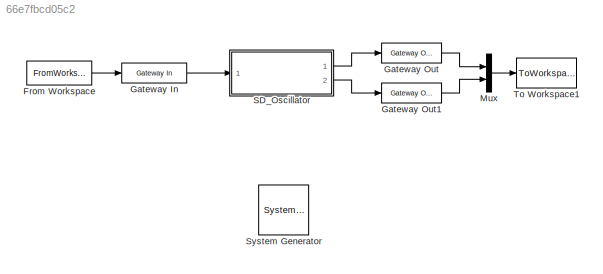
MODEL slx_66e7fbcd05c2
KIND model
CONFIG AbsTol = auto
CONFIG FixedStep = auto
CONFIG MaxStep = auto
CONFIG MinStep = auto
CONFIG RelTol = 1e-3
CONFIG SampleTimeConstraint = Unconstrained
CONFIG Solver = VariableStepAuto
CONFIG SolverMode = SingleTasking
CONFIG SolverName = VariableStepAuto
CONFIG StartTime = 0.0
CONFIG StopTime = t_stop
BLOCK [Reference]  System Generator  REF=xbsIndex_r4/ System Generator
  AttributesFormatString = System\nGenerator
  Ports = []
  SourceBlock = xbsIndex_r4/ System Generator
  SourceType = Xilinx System Generator Block
  Tag = genX
  UserDataPersistent = on
BLOCK [FromWorkspace] From Workspace
  SampleTime = ts
  VariableName = [t',w']
  ZeroCross = on
BLOCK [Reference] Gateway In  REF=xbsIndex_r4/Gateway In
  Ports = [1, 1]
  SourceBlock = xbsIndex_r4/Gateway In
  SourceType = Xilinx Gateway In Block
BLOCK [Reference] Gateway Out  REF=xbsIndex_r4/Gateway Out
  Ports = [1, 1]
  SourceBlock = xbsIndex_r4/Gateway Out
  SourceType = Xilinx Gateway Out Block
BLOCK [Reference] Gateway Out1  REF=xbsIndex_r4/Gateway Out
  Ports = [1, 1]
  SourceBlock = xbsIndex_r4/Gateway Out
  SourceType = Xilinx Gateway Out Block
BLOCK [Mux] Mux
  DisplayOption = bar
  Inputs = 2
  Ports = [2, 1]
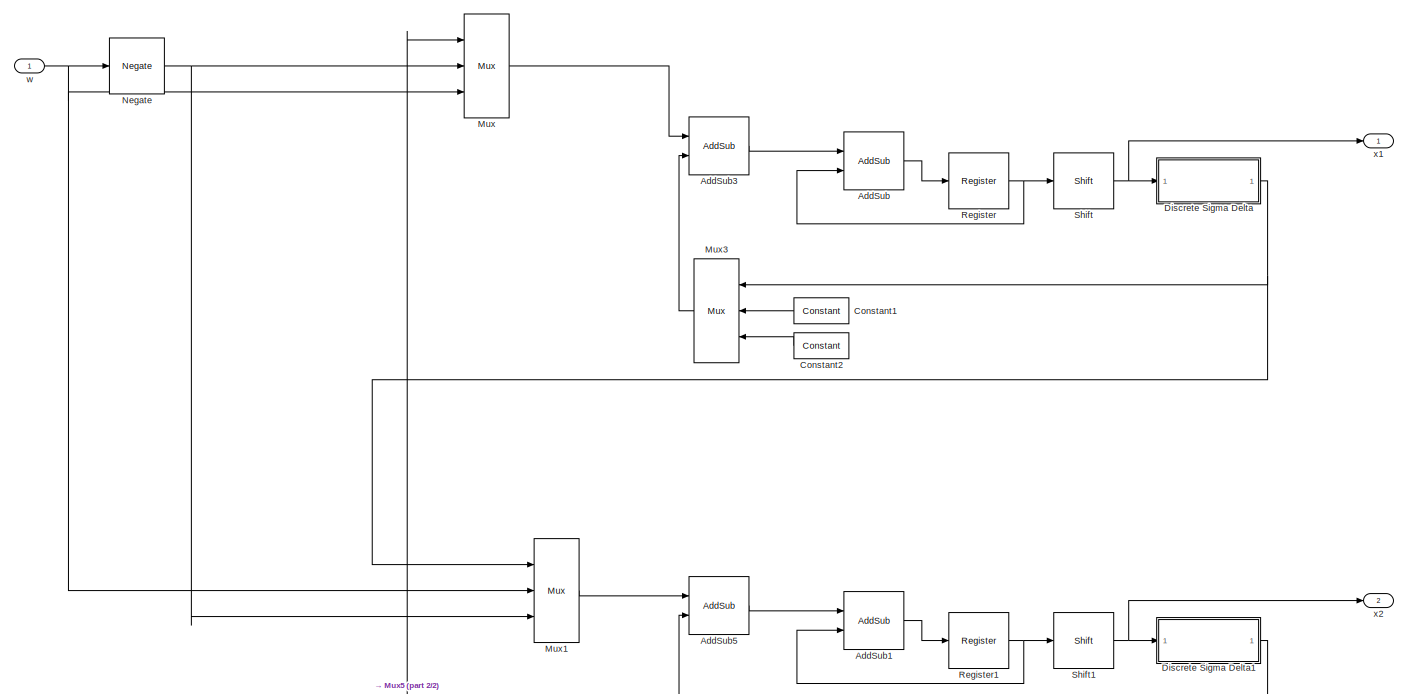
[diagram: SD_Oscillator - part 1/2, most of the canvas]
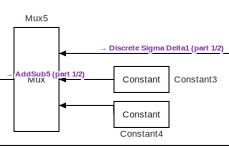
[diagram: SD_Oscillator - part 2/2, bottom center region]
BLOCK [SubSystem] SD_Oscillator
  Ports = [1, 2]
  RequestExecContextInheritance = off
  Variant = off
BLOCK [Reference] SD_Oscillator/AddSub  REF=xbsIndex_r4/AddSub
  Ports = [2, 1]
  SourceBlock = xbsIndex_r4/AddSub
  SourceType = Xilinx Adder/Subtracter Block
BLOCK [Reference] SD_Oscillator/AddSub1  REF=xbsIndex_r4/AddSub
  Ports = [2, 1]
  SourceBlock = xbsIndex_r4/AddSub
  SourceType = Xilinx Adder/Subtracter Block
BLOCK [Reference] SD_Oscillator/AddSub3  REF=xbsIndex_r4/AddSub
  Ports = [2, 1]
  SourceBlock = xbsIndex_r4/AddSub
  SourceType = Xilinx Adder/Subtracter Block
BLOCK [Reference] SD_Oscillator/AddSub5  REF=xbsIndex_r4/AddSub
  Ports = [2, 1]
  SourceBlock = xbsIndex_r4/AddSub
  SourceType = Xilinx Adder/Subtracter Block
BLOCK [Reference] SD_Oscillator/Constant1  REF=xbsIndex_r4/Constant
  Ports = [0, 1]
  SourceBlock = xbsIndex_r4/Constant
  SourceType = Xilinx Constant Block Block
BLOCK [Reference] SD_Oscillator/Constant2  REF=xbsIndex_r4/Constant
  Ports = [0, 1]
  SourceBlock = xbsIndex_r4/Constant
  SourceType = Xilinx Constant Block Block
BLOCK [Reference] SD_Oscillator/Constant3  REF=xbsIndex_r4/Constant
  Ports = [0, 1]
  SourceBlock = xbsIndex_r4/Constant
  SourceType = Xilinx Constant Block Block
BLOCK [Reference] SD_Oscillator/Constant4  REF=xbsIndex_r4/Constant
  Ports = [0, 1]
  SourceBlock = xbsIndex_r4/Constant
  SourceType = Xilinx Constant Block Block
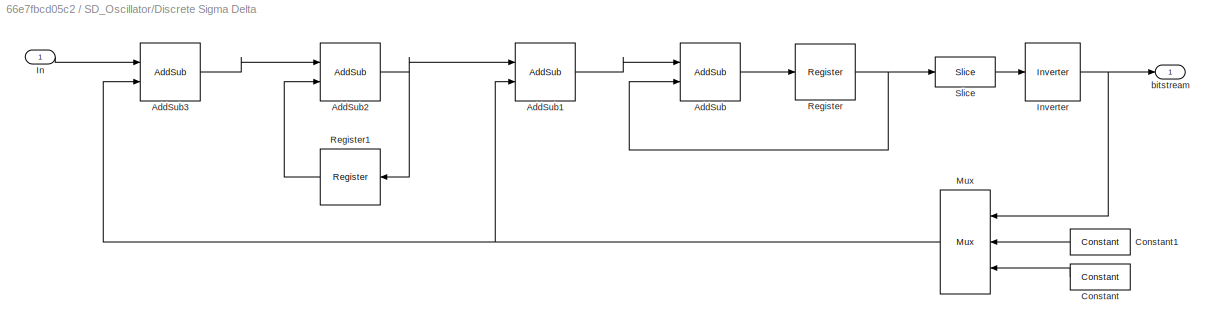
BLOCK [SubSystem] SD_Oscillator/Discrete Sigma Delta
  Ports = [1, 1]
  RequestExecContextInheritance = off
  Variant = off
BLOCK [Reference] SD_Oscillator/Discrete Sigma Delta/AddSub  REF=xbsIndex_r4/AddSub
  Ports = [2, 1]
  SourceBlock = xbsIndex_r4/AddSub
  SourceType = Xilinx Adder/Subtracter Block
BLOCK [Reference] SD_Oscillator/Discrete Sigma Delta/AddSub1  REF=xbsIndex_r4/AddSub
  Ports = [2, 1]
  SourceBlock = xbsIndex_r4/AddSub
  SourceType = Xilinx Adder/Subtracter Block
BLOCK [Reference] SD_Oscillator/Discrete Sigma Delta/AddSub2  REF=xbsIndex_r4/AddSub
  Ports = [2, 1]
  SourceBlock = xbsIndex_r4/AddSub
  SourceType = Xilinx Adder/Subtracter Block
BLOCK [Reference] SD_Oscillator/Discrete Sigma Delta/AddSub3  REF=xbsIndex_r4/AddSub
  Ports = [2, 1]
  SourceBlock = xbsIndex_r4/AddSub
  SourceType = Xilinx Adder/Subtracter Block
BLOCK [Reference] SD_Oscillator/Discrete Sigma Delta/Constant  REF=xbsIndex_r4/Constant
  Ports = [0, 1]
  SourceBlock = xbsIndex_r4/Constant
  SourceType = Xilinx Constant Block Block
BLOCK [Reference] SD_Oscillator/Discrete Sigma Delta/Constant1  REF=xbsIndex_r4/Constant
  Ports = [0, 1]
  SourceBlock = xbsIndex_r4/Constant
  SourceType = Xilinx Constant Block Block
BLOCK [Inport] SD_Oscillator/Discrete Sigma Delta/In
  IconDisplay = Port number
BLOCK [Reference] SD_Oscillator/Discrete Sigma Delta/Inverter  REF=xbsIndex_r4/Inverter
  Ports = [1, 1]
  SourceBlock = xbsIndex_r4/Inverter
  SourceType = Xilinx Inverter Block
BLOCK [Reference] SD_Oscillator/Discrete Sigma Delta/Mux  REF=xbsIndex_r4/Mux
  Ports = [3, 1]
  SourceBlock = xbsIndex_r4/Mux
  SourceType = Xilinx Bus Multiplexer Block
BLOCK [Reference] SD_Oscillator/Discrete Sigma Delta/Register  REF=xbsIndex_r4/Register
  Ports = [1, 1]
  SourceBlock = xbsIndex_r4/Register
  SourceType = Xilinx Register Block
BLOCK [Reference] SD_Oscillator/Discrete Sigma Delta/Register1  REF=xbsIndex_r4/Register
  Ports = [1, 1]
  SourceBlock = xbsIndex_r4/Register
  SourceType = Xilinx Register Block
BLOCK [Reference] SD_Oscillator/Discrete Sigma Delta/Slice  REF=xbsIndex_r4/Slice
  Ports = [1, 1]
  SourceBlock = xbsIndex_r4/Slice
  SourceType = Xilinx Bit Slice Extractor Block
BLOCK [Outport] SD_Oscillator/Discrete Sigma Delta/bitstream
  IconDisplay = Port number
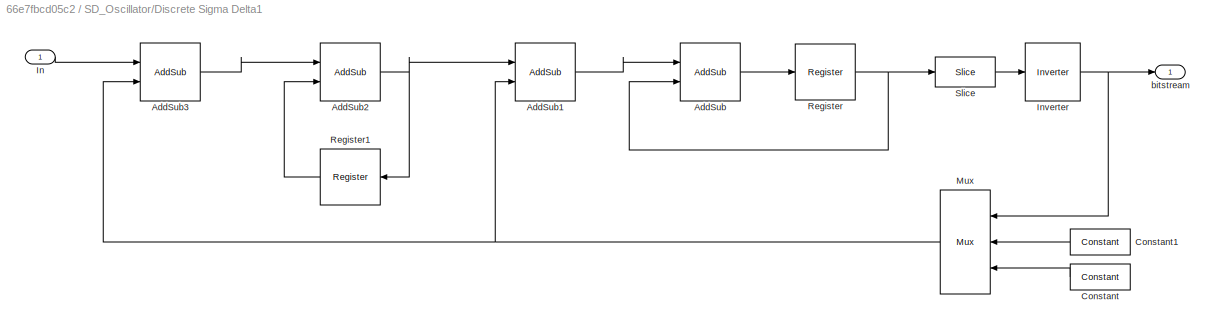
BLOCK [SubSystem] SD_Oscillator/Discrete Sigma Delta1
  Ports = [1, 1]
  RequestExecContextInheritance = off
  Variant = off
BLOCK [Reference] SD_Oscillator/Discrete Sigma Delta1/AddSub  REF=xbsIndex_r4/AddSub
  Ports = [2, 1]
  SourceBlock = xbsIndex_r4/AddSub
  SourceType = Xilinx Adder/Subtracter Block
BLOCK [Reference] SD_Oscillator/Discrete Sigma Delta1/AddSub1  REF=xbsIndex_r4/AddSub
  Ports = [2, 1]
  SourceBlock = xbsIndex_r4/AddSub
  SourceType = Xilinx Adder/Subtracter Block
BLOCK [Reference] SD_Oscillator/Discrete Sigma Delta1/AddSub2  REF=xbsIndex_r4/AddSub
  Ports = [2, 1]
  SourceBlock = xbsIndex_r4/AddSub
  SourceType = Xilinx Adder/Subtracter Block
BLOCK [Reference] SD_Oscillator/Discrete Sigma Delta1/AddSub3  REF=xbsIndex_r4/AddSub
  Ports = [2, 1]
  SourceBlock = xbsIndex_r4/AddSub
  SourceType = Xilinx Adder/Subtracter Block
BLOCK [Reference] SD_Oscillator/Discrete Sigma Delta1/Constant  REF=xbsIndex_r4/Constant
  Ports = [0, 1]
  SourceBlock = xbsIndex_r4/Constant
  SourceType = Xilinx Constant Block Block
BLOCK [Reference] SD_Oscillator/Discrete Sigma Delta1/Constant1  REF=xbsIndex_r4/Constant
  Ports = [0, 1]
  SourceBlock = xbsIndex_r4/Constant
  SourceType = Xilinx Constant Block Block
BLOCK [Inport] SD_Oscillator/Discrete Sigma Delta1/In
  IconDisplay = Port number
BLOCK [Reference] SD_Oscillator/Discrete Sigma Delta1/Inverter  REF=xbsIndex_r4/Inverter
  Ports = [1, 1]
  SourceBlock = xbsIndex_r4/Inverter
  SourceType = Xilinx Inverter Block
BLOCK [Reference] SD_Oscillator/Discrete Sigma Delta1/Mux  REF=xbsIndex_r4/Mux
  Ports = [3, 1]
  SourceBlock = xbsIndex_r4/Mux
  SourceType = Xilinx Bus Multiplexer Block
BLOCK [Reference] SD_Oscillator/Discrete Sigma Delta1/Register  REF=xbsIndex_r4/Register
  Ports = [1, 1]
  SourceBlock = xbsIndex_r4/Register
  SourceType = Xilinx Register Block
BLOCK [Reference] SD_Oscillator/Discrete Sigma Delta1/Register1  REF=xbsIndex_r4/Register
  Ports = [1, 1]
  SourceBlock = xbsIndex_r4/Register
  SourceType = Xilinx Register Block
BLOCK [Reference] SD_Oscillator/Discrete Sigma Delta1/Slice  REF=xbsIndex_r4/Slice
  Ports = [1, 1]
  SourceBlock = xbsIndex_r4/Slice
  SourceType = Xilinx Bit Slice Extractor Block
BLOCK [Outport] SD_Oscillator/Discrete Sigma Delta1/bitstream
  IconDisplay = Port number
BLOCK [Reference] SD_Oscillator/Mux  REF=xbsIndex_r4/Mux
  Ports = [3, 1]
  SourceBlock = xbsIndex_r4/Mux
  SourceType = Xilinx Bus Multiplexer Block
BLOCK [Reference] SD_Oscillator/Mux1  REF=xbsIndex_r4/Mux
  Ports = [3, 1]
  SourceBlock = xbsIndex_r4/Mux
  SourceType = Xilinx Bus Multiplexer Block
BLOCK [Reference] SD_Oscillator/Mux3  REF=xbsIndex_r4/Mux
  Ports = [3, 1]
  SourceBlock = xbsIndex_r4/Mux
  SourceType = Xilinx Bus Multiplexer Block
BLOCK [Reference] SD_Oscillator/Mux5  REF=xbsIndex_r4/Mux
  Ports = [3, 1]
  SourceBlock = xbsIndex_r4/Mux
  SourceType = Xilinx Bus Multiplexer Block
BLOCK [Reference] SD_Oscillator/Negate  REF=xbsIndex_r4/Negate
  Ports = [1, 1]
  SourceBlock = xbsIndex_r4/Negate
  SourceType = Xilinx Negate Block Block
BLOCK [Reference] SD_Oscillator/Register  REF=xbsIndex_r4/Register
  Ports = [1, 1]
  SourceBlock = xbsIndex_r4/Register
  SourceType = Xilinx Register Block
BLOCK [Reference] SD_Oscillator/Register1  REF=xbsIndex_r4/Register
  Ports = [1, 1]
  SourceBlock = xbsIndex_r4/Register
  SourceType = Xilinx Register Block
BLOCK [Reference] SD_Oscillator/Shift  REF=xbsIndex_r4/Shift
  Ports = [1, 1]
  SourceBlock = xbsIndex_r4/Shift
  SourceType = Xilinx Binary Shift Operator Block
BLOCK [Reference] SD_Oscillator/Shift1  REF=xbsIndex_r4/Shift
  Ports = [1, 1]
  SourceBlock = xbsIndex_r4/Shift
  SourceType = Xilinx Binary Shift Operator Block
BLOCK [Inport] SD_Oscillator/w
  IconDisplay = Port number
BLOCK [Outport] SD_Oscillator/x1
  IconDisplay = Port number
BLOCK [Outport] SD_Oscillator/x2
  IconDisplay = Port number
  Port = 2
BLOCK [ToWorkspace] To Workspace1
  FixptAsFi = on
  MaxDataPoints = inf
  Ports = [1]
  SampleTime = -1
  Save2DSignal = 2-D array (concatenate along first dimension)
  VariableName = osc
LINE From Workspace:1 -> Gateway In:1
LINE Gateway In:1 -> SD_Oscillator:1
LINE Gateway Out1:1 -> Mux:2
LINE Gateway Out:1 -> Mux:1
LINE Mux:1 -> To Workspace1:1
LINE SD_Oscillator/AddSub1:1 -> SD_Oscillator/Register1:1
LINE SD_Oscillator/AddSub3:1 -> SD_Oscillator/AddSub:1
LINE SD_Oscillator/AddSub5:1 -> SD_Oscillator/AddSub1:1
LINE SD_Oscillator/AddSub:1 -> SD_Oscillator/Register:1
LINE SD_Oscillator/Constant1:1 -> SD_Oscillator/Mux3:2
LINE SD_Oscillator/Constant2:1 -> SD_Oscillator/Mux3:3
LINE SD_Oscillator/Constant3:1 -> SD_Oscillator/Mux5:2
LINE SD_Oscillator/Constant4:1 -> SD_Oscillator/Mux5:3
LINE SD_Oscillator/Discrete Sigma Delta/AddSub1:1 -> SD_Oscillator/Discrete Sigma Delta/AddSub:1
NET SD_Oscillator/Discrete Sigma Delta/AddSub2:1 -> SD_Oscillator/Discrete Sigma Delta/AddSub1:1, SD_Oscillator/Discrete Sigma Delta/Register1:1
LINE SD_Oscillator/Discrete Sigma Delta/AddSub3:1 -> SD_Oscillator/Discrete Sigma Delta/AddSub2:1
LINE SD_Oscillator/Discrete Sigma Delta/AddSub:1 -> SD_Oscillator/Discrete Sigma Delta/Register:1
LINE SD_Oscillator/Discrete Sigma Delta/Constant1:1 -> SD_Oscillator/Discrete Sigma Delta/Mux:2
LINE SD_Oscillator/Discrete Sigma Delta/Constant:1 -> SD_Oscillator/Discrete Sigma Delta/Mux:3
LINE SD_Oscillator/Discrete Sigma Delta/In:1 -> SD_Oscillator/Discrete Sigma Delta/AddSub3:1
NET SD_Oscillator/Discrete Sigma Delta/Inverter:1 -> SD_Oscillator/Discrete Sigma Delta/Mux:1, SD_Oscillator/Discrete Sigma Delta/bitstream:1
NET SD_Oscillator/Discrete Sigma Delta/Mux:1 -> SD_Oscillator/Discrete Sigma Delta/AddSub1:2, SD_Oscillator/Discrete Sigma Delta/AddSub3:2
LINE SD_Oscillator/Discrete Sigma Delta/Register1:1 -> SD_Oscillator/Discrete Sigma Delta/AddSub2:2
NET SD_Oscillator/Discrete Sigma Delta/Register:1 -> SD_Oscillator/Discrete Sigma Delta/AddSub:2, SD_Oscillator/Discrete Sigma Delta/Slice:1
LINE SD_Oscillator/Discrete Sigma Delta/Slice:1 -> SD_Oscillator/Discrete Sigma Delta/Inverter:1
LINE SD_Oscillator/Discrete Sigma Delta1/AddSub1:1 -> SD_Oscillator/Discrete Sigma Delta1/AddSub:1
NET SD_Oscillator/Discrete Sigma Delta1/AddSub2:1 -> SD_Oscillator/Discrete Sigma Delta1/AddSub1:1, SD_Oscillator/Discrete Sigma Delta1/Register1:1
LINE SD_Oscillator/Discrete Sigma Delta1/AddSub3:1 -> SD_Oscillator/Discrete Sigma Delta1/AddSub2:1
LINE SD_Oscillator/Discrete Sigma Delta1/AddSub:1 -> SD_Oscillator/Discrete Sigma Delta1/Register:1
LINE SD_Oscillator/Discrete Sigma Delta1/Constant1:1 -> SD_Oscillator/Discrete Sigma Delta1/Mux:2
LINE SD_Oscillator/Discrete Sigma Delta1/Constant:1 -> SD_Oscillator/Discrete Sigma Delta1/Mux:3
LINE SD_Oscillator/Discrete Sigma Delta1/In:1 -> SD_Oscillator/Discrete Sigma Delta1/AddSub3:1
NET SD_Oscillator/Discrete Sigma Delta1/Inverter:1 -> SD_Oscillator/Discrete Sigma Delta1/Mux:1, SD_Oscillator/Discrete Sigma Delta1/bitstream:1
NET SD_Oscillator/Discrete Sigma Delta1/Mux:1 -> SD_Oscillator/Discrete Sigma Delta1/AddSub1:2, SD_Oscillator/Discrete Sigma Delta1/AddSub3:2
LINE SD_Oscillator/Discrete Sigma Delta1/Register1:1 -> SD_Oscillator/Discrete Sigma Delta1/AddSub2:2
NET SD_Oscillator/Discrete Sigma Delta1/Register:1 -> SD_Oscillator/Discrete Sigma Delta1/AddSub:2, SD_Oscillator/Discrete Sigma Delta1/Slice:1
LINE SD_Oscillator/Discrete Sigma Delta1/Slice:1 -> SD_Oscillator/Discrete Sigma Delta1/Inverter:1
NET SD_Oscillator/Discrete Sigma Delta1:1 -> SD_Oscillator/Mux5:1, SD_Oscillator/Mux:1
NET SD_Oscillator/Discrete Sigma Delta:1 -> SD_Oscillator/Mux1:1, SD_Oscillator/Mux3:1
LINE SD_Oscillator/Mux1:1 -> SD_Oscillator/AddSub5:1
LINE SD_Oscillator/Mux3:1 -> SD_Oscillator/AddSub3:2
LINE SD_Oscillator/Mux5:1 -> SD_Oscillator/AddSub5:2
LINE SD_Oscillator/Mux:1 -> SD_Oscillator/AddSub3:1
NET SD_Oscillator/Negate:1 -> SD_Oscillator/Mux1:3, SD_Oscillator/Mux:2
NET SD_Oscillator/Register1:1 -> SD_Oscillator/AddSub1:2, SD_Oscillator/Shift1:1
NET SD_Oscillator/Register:1 -> SD_Oscillator/AddSub:2, SD_Oscillator/Shift:1
NET SD_Oscillator/Shift1:1 -> SD_Oscillator/Discrete Sigma Delta1:1, SD_Oscillator/x2:1
NET SD_Oscillator/Shift:1 -> SD_Oscillator/Discrete Sigma Delta:1, SD_Oscillator/x1:1
NET SD_Oscillator/w:1 -> SD_Oscillator/Mux1:2, SD_Oscillator/Mux:3, SD_Oscillator/Negate:1
LINE SD_Oscillator:1 -> Gateway Out:1
LINE SD_Oscillator:2 -> Gateway Out1:1
note: NET lines group one-source signal fan-out (src -> all destinations, sorted); 1:1 wires keep LINE
